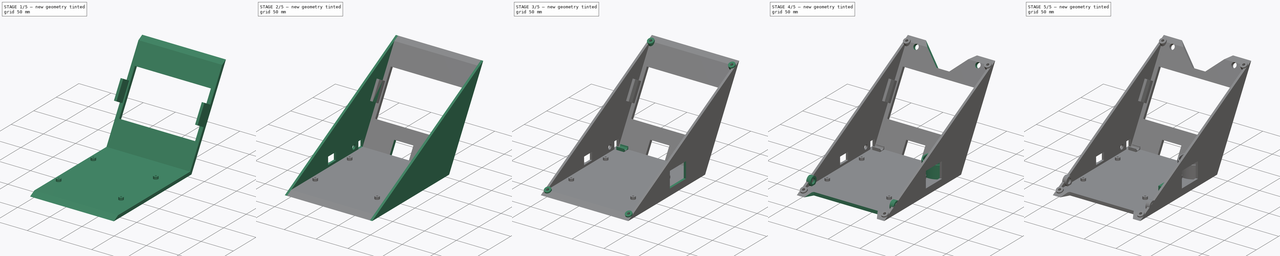
[diagram: build sequence overview — one tinted view per stage of 5, left to right]
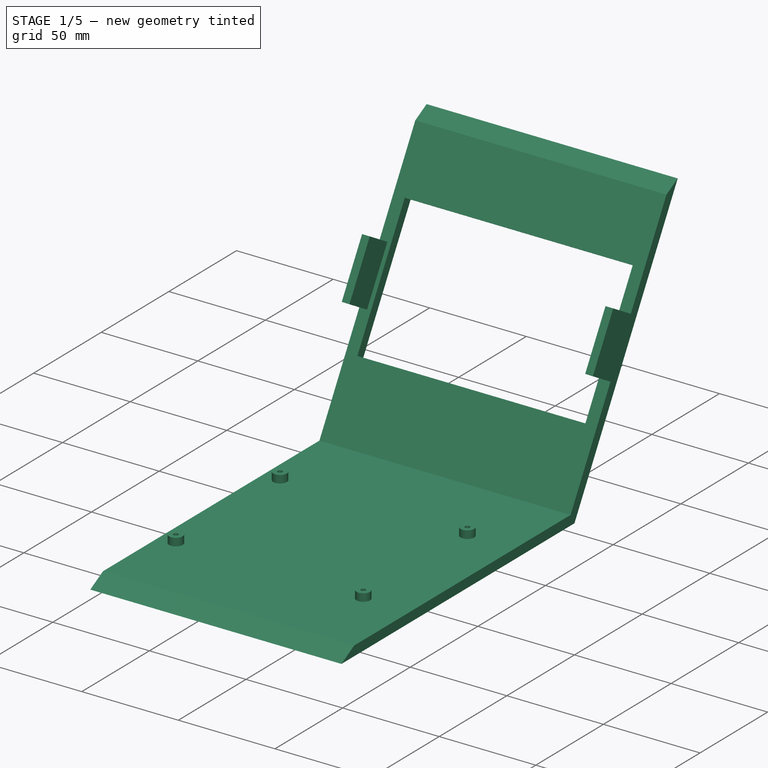
[diagram: stage 1 of 5 — iso view after this stage's code; geometry added in this stage tinted green]
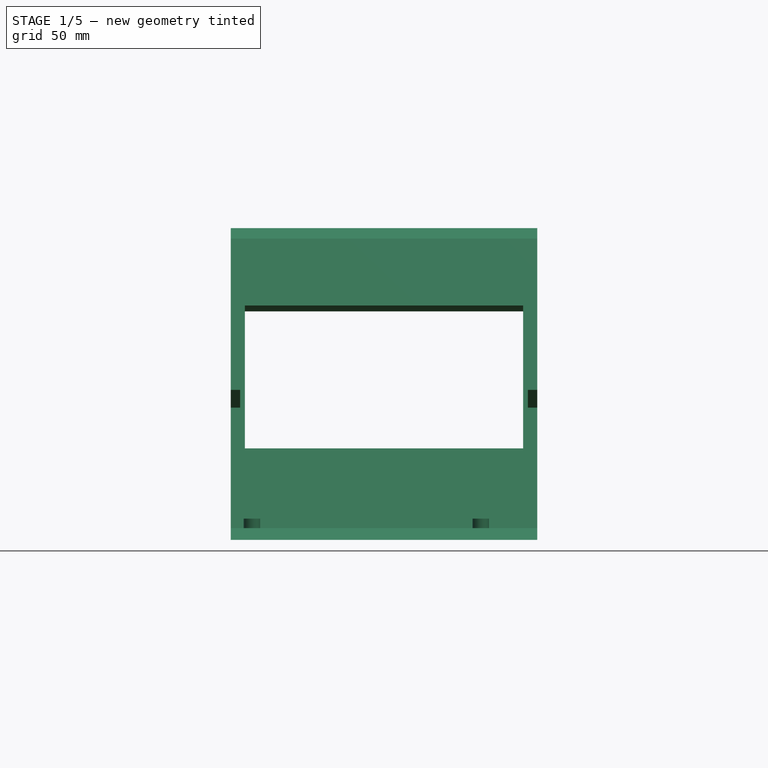
[diagram: stage 1 of 5 — front view after this stage's code; geometry added in this stage tinted green]
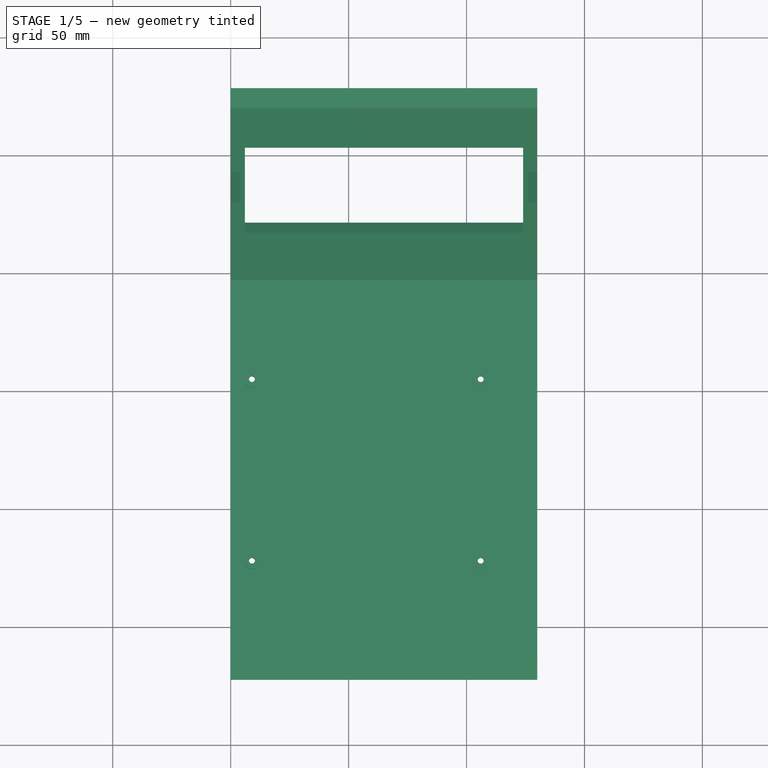
[diagram: stage 1 of 5 — top view after this stage's code; geometry added in this stage tinted green]
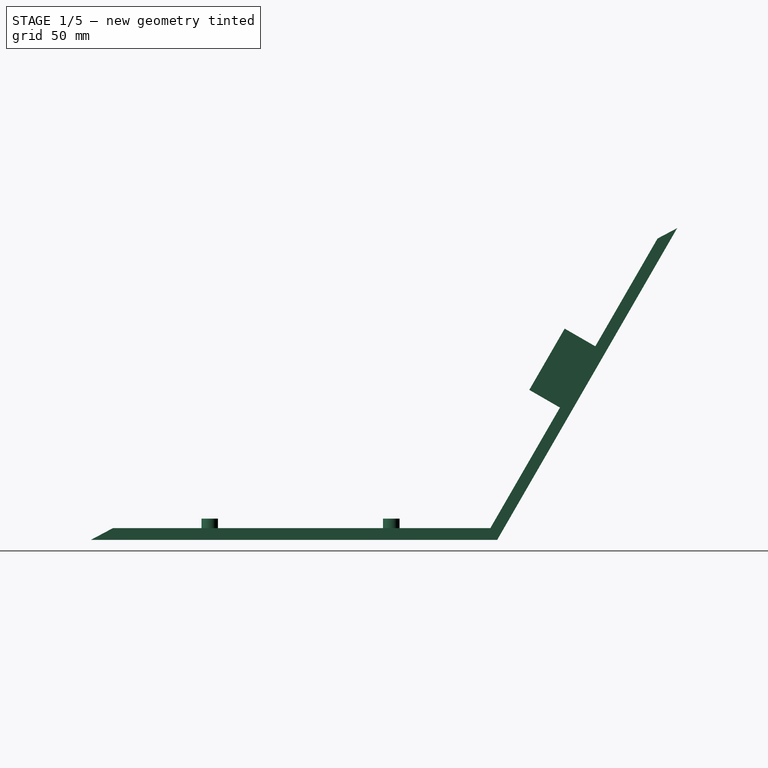
[diagram: stage 1 of 5 — right view after this stage's code; geometry added in this stage tinted green]
FCSTD DOCUMENT  (FreeCAD 0.17R9822 (Git))
Label: StereoVisionCar
License: All rights reserved
LicenseURL: http://en.wikipedia.org/wiki/All_rights_reserved
objects: Sketcher::SketchObject×26, PartDesign::Pocket×14, PartDesign::Pad×12, PartDesign::Body×1
note: 79 computed .brp shape members not serialized (recipe doc carries the construction recipe); baked Part::Feature solids carry a one-line shape summary decoded from their .brp

FEATURE [Sketcher::SketchObject] Sketch001
  MapMode = 5
  Placement = pos=(0,0,0) rot=(0.57735,0.57735,0.57735;2.0944rad)
  Support = -> [YZ_Plane]
  sketch-geometry (9):
    g0: LineSegment StartX=0 StartY=0 StartZ=0 EndX=-172.29 EndY=0 EndZ=0
    g1: LineSegment StartX=-172.29 StartY=0 StartZ=0 EndX=-162.887 EndY=5 EndZ=0
    g2: LineSegment StartX=-162.887 StartY=5 StartZ=0 EndX=-2.88675 EndY=5 EndZ=0
    g3: LineSegment StartX=-2.88675 StartY=5 StartZ=0 EndX=67.9877 EndY=127.758 EndZ=0
    g4: LineSegment StartX=67.9877 StartY=127.758 StartZ=0 EndX=76.3186 EndY=132.188 EndZ=0
    g5: LineSegment StartX=76.3186 StartY=132.188 StartZ=0 EndX=0 EndY=0 EndZ=0
    g6: LineSegment [constr] StartX=-162.887 StartY=5 StartZ=0 EndX=67.9877 EndY=127.758 EndZ=0
    g7: LineSegment [constr] StartX=67.9877 StartY=127.758 StartZ=0 EndX=72.3178 EndY=125.258 EndZ=0
    g8: LineSegment [constr] StartX=-162.887 StartY=5 StartZ=0 EndX=-162.887 EndY=0 EndZ=0
  constraints (25):
    c: Coincident(g-1,g0)
    c: Horizontal(g0)
    c: Coincident(g0,g1)
    c: Coincident(g1,g2)
    c: Horizontal(g2)
    c: Coincident(g2,g3)
    c: Coincident(g3,g4)
    c: Coincident(g4,g5)
    c: Coincident(g5,g0)
    c: Coincident(g6,g1)
    c: Coincident(g6,g3)
    c: Parallel(g1,g6)
    c: Parallel(g6,g4)
    c: Distance(g2) = 160
    c: Parallel(g5,g3)
    c: Angle(g5,g0) = 2.0944
    c: Coincident(g7,g3)
    c: PointOnObject(g7,g5)
    c: Coincident(g8,g1)
    c: PointOnObject(g8,g0)
    c: Perpendicular(g0,g8)
    c: Perpendicular(g5,g7)
    c: Equal(g8,g7)
    c: Distance(g7) = 5
    c: Angle(g6) = 0.488692
FEATURE [PartDesign::Pad] Pad
  Length = 130
  Length2 = 100
  Placement = pos=(0,0,0) rot=(0.57735,0.57735,0.57735;2.0944rad)
  Profile = -> Sketch001
  Type = 0
FEATURE [Sketcher::SketchObject] Sketch
  ExternalGeometry = -> [Pad]
  MapMode = 5
  Placement = pos=(0,-4.33013,2.5) rot=(0.447214,0.447214,-0.774597;1.82348rad)
  Support = -> [Pad]
  sketch-geometry (7):
    g0: LineSegment StartX=-111.887 StartY=124 StartZ=0 EndX=-41.8868 EndY=124 EndZ=0
    g1: LineSegment StartX=-41.8868 StartY=124 StartZ=0 EndX=-41.8868 EndY=6 EndZ=0
    g2: LineSegment StartX=-41.8868 StartY=6 StartZ=0 EndX=-111.887 EndY=6 EndZ=0
    g3: LineSegment StartX=-111.887 StartY=6 StartZ=0 EndX=-111.887 EndY=124 EndZ=0
    g4: LineSegment [constr] StartX=-41.8868 StartY=6 StartZ=0 EndX=-2.88675 EndY=6 EndZ=0
    g5: LineSegment [constr] StartX=-41.8868 StartY=6 StartZ=0 EndX=-41.8868 EndY=0 EndZ=0
    g6: LineSegment [constr] StartX=-41.8868 StartY=124 StartZ=0 EndX=-41.8868 EndY=130 EndZ=0
  constraints (21):
    c: Coincident(g0,g1)
    c: Coincident(g1,g2)
    c: Coincident(g2,g3)
    c: Coincident(g3,g0)
    c: Horizontal(g0)
    c: Horizontal(g2)
    c: Vertical(g1)
    c: Vertical(g3)
    c: Distance(g2) = 70
    c: Distance(g1) = 118
    c: Coincident(g4,g1)
    c: PointOnObject(g4,g-5)
    c: Horizontal(g4)
    c: Distance(g4) = 39
    c: Coincident(g5,g1)
    c: PointOnObject(g5,g-6)
    c: Vertical(g5)
    c: Coincident(g6,g0)
    c: PointOnObject(g6,g-3)
    c: Vertical(g6)
    c: Equal(g6,g5)
FEATURE [PartDesign::Pocket] Pocket
  BaseFeature = -> Pad
  Length = 5
  Placement = pos=(0,0,0) rot=(0.57735,0.57735,0.57735;2.0944rad)
  Profile = -> Sketch
  Type = 2
FEATURE [Sketcher::SketchObject] Sketch002
  ExternalGeometry = -> [Pocket]
  MapMode = 5
  Placement = pos=(0,0,5) rot=(0,0,-1;1.5708rad)
  Support = -> [Pocket]
  sketch-geometry (11):
    g0: LineSegment [constr] StartX=44.8868 StartY=106 StartZ=0 EndX=121.887 EndY=106 EndZ=0
    g1: LineSegment [constr] StartX=121.887 StartY=106 StartZ=0 EndX=121.887 EndY=9 EndZ=0
    g2: LineSegment [constr] StartX=121.887 StartY=9 StartZ=0 EndX=44.8868 EndY=9 EndZ=0
    g3: LineSegment [constr] StartX=44.8868 StartY=9 StartZ=0 EndX=44.8868 EndY=106 EndZ=0
    g4: LineSegment [constr] StartX=44.8868 StartY=106 StartZ=0 EndX=2.88675 EndY=106 EndZ=0
    g5: LineSegment [constr] StartX=44.8868 StartY=106 StartZ=0 EndX=44.8868 EndY=130 EndZ=0
    g6: LineSegment [constr] StartX=44.8868 StartY=9 StartZ=0 EndX=44.8868 EndY=0 EndZ=0
    g7: Circle CenterX=44.8868 CenterY=106 CenterZ=0 NormalX=0 NormalY=0 NormalZ=1 Radius=3.5
    g8: Circle CenterX=121.887 CenterY=106 CenterZ=0 NormalX=0 NormalY=0 NormalZ=1 Radius=3.5
    g9: Circle CenterX=121.887 CenterY=9 CenterZ=0 NormalX=0 NormalY=0 NormalZ=1 Radius=3.5
    g10: Circle CenterX=44.8868 CenterY=9 CenterZ=0 NormalX=0 NormalY=0 NormalZ=1 Radius=3.5
  constraints (29):
    c: Coincident(g0,g1)
    c: Coincident(g1,g2)
    c: Coincident(g2,g3)
    c: Coincident(g3,g0)
    c: Horizontal(g0)
    c: Horizontal(g2)
    c: Vertical(g1)
    c: Vertical(g3)
    c: Coincident(g4,g0)
    c: PointOnObject(g4,g-3)
    c: Horizontal(g4)
    c: Coincident(g5,g0)
    c: PointOnObject(g5,g-4)
    c: Vertical(g5)
    c: Coincident(g6,g2)
    c: PointOnObject(g6,g-5)
    c: Vertical(g6)
    c: Distance(g4) = 42
    c: Distance(g3) = 97
    c: Distance(g0) = 77
    c: Distance(g6) = 9
    c: Coincident(g7,g0)
    c: Coincident(g8,g0)
    c: Coincident(g9,g1)
    c: Coincident(g10,g2)
    c: Radius(g10) = 3.5
    c: Equal(g10,g7)
    c: Equal(g10,g8)
    c: Equal(g10,g9)
FEATURE [Sketcher::SketchObject] Sketch003
  ExternalGeometry = -> [Pocket]
  MapMode = 5
  Placement = pos=(0,-4.33013,2.5) rot=(0.447214,0.447214,-0.774597;1.82348rad)
  Support = -> [Pocket]
  sketch-geometry (6):
    g0: LineSegment StartX=-2.88675 StartY=72.5 StartZ=0 EndX=-22.8868 EndY=72.5 EndZ=0
    g1: LineSegment StartX=-22.8868 StartY=72.5 StartZ=0 EndX=-22.8868 EndY=42.5 EndZ=0
    g2: LineSegment StartX=-22.8868 StartY=42.5 StartZ=0 EndX=-2.88675 EndY=42.5 EndZ=0
    g3: LineSegment StartX=-2.88675 StartY=42.5 StartZ=0 EndX=-2.88675 EndY=72.5 EndZ=0
    g4: LineSegment [constr] StartX=-22.8868 StartY=72.5 StartZ=0 EndX=-22.8868 EndY=130 EndZ=0
    g5: LineSegment [constr] StartX=-22.8868 StartY=42.5 StartZ=0 EndX=-22.8868 EndY=0 EndZ=0
  constraints (18):
    c: Coincident(g0,g1)
    c: Coincident(g1,g2)
    c: Coincident(g2,g3)
    c: Coincident(g3,g0)
    c: Horizontal(g0)
    c: Horizontal(g2)
    c: Vertical(g1)
    c: Vertical(g3)
    c: PointOnObject(g0,g-3)
    c: Distance(g1) = 30
    c: Distance(g2) = 20
    c: Coincident(g4,g0)
    c: PointOnObject(g4,g-4)
    c: Vertical(g4)
    c: Coincident(g5,g1)
    c: PointOnObject(g5,g-5)
    c: Vertical(g5)
    c: Distance(g4) = 57.5
FEATURE [PartDesign::Pad] Pad001
  BaseFeature = -> Pocket
  Length = 4
  Length2 = 100
  Placement = pos=(0,0,0) rot=(0.57735,0.57735,0.57735;2.0944rad)
  Profile = -> Sketch002
  Type = 0
FEATURE [Sketcher::SketchObject] Sketch004
  ExternalGeometry = -> [Pad001]
  MapMode = 5
  Placement = pos=(0,0,9) rot=(0,0,-1;1.5708rad)
  Support = -> [Pad001]
  sketch-geometry (4):
    g0: Circle CenterX=44.8868 CenterY=9 CenterZ=0 NormalX=0 NormalY=0 NormalZ=1 Radius=1.25
    g1: Circle CenterX=121.887 CenterY=9 CenterZ=0 NormalX=0 NormalY=0 NormalZ=1 Radius=1.25
    g2: Circle CenterX=44.8868 CenterY=106 CenterZ=0 NormalX=0 NormalY=0 NormalZ=1 Radius=1.25
    g3: Circle CenterX=121.887 CenterY=106 CenterZ=0 NormalX=0 NormalY=0 NormalZ=1 Radius=1.25
  constraints (8):
    c: Coincident(g0,g-4)
    c: Coincident(g1,g-3)
    c: Coincident(g2,g-6)
    c: Coincident(g3,g-5)
    c: Radius(g3) = 1.25
    c: Equal(g3,g0)
    c: Equal(g3,g1)
    c: Equal(g3,g2)
FEATURE [PartDesign::Pocket] Pocket002
  BaseFeature = -> Pad001
  Length = 5
  Placement = pos=(0,0,0) rot=(0.57735,0.57735,0.57735;2.0944rad)
  Profile = -> Sketch004
  Type = 1
FEATURE [Sketcher::SketchObject] Sketch005
  MapMode = 5
  Placement = pos=(0,-4.33013,2.5) rot=(0.447214,0.447214,-0.774597;1.82348rad)
  sketch-geometry (26):
    g0: LineSegment StartX=-91.8868 StartY=130 StartZ=0 EndX=-61.8868 EndY=130 EndZ=0
    g1: LineSegment StartX=-61.8868 StartY=130 StartZ=0 EndX=-61.8868 EndY=126 EndZ=0
    g2: LineSegment StartX=-61.8868 StartY=126 StartZ=0 EndX=-91.8868 EndY=126 EndZ=0
    g3: LineSegment StartX=-91.8868 StartY=126 StartZ=0 EndX=-91.8868 EndY=130 EndZ=0
    g4: LineSegment StartX=-61.8868 StartY=0 StartZ=0 EndX=-91.8868 EndY=0 EndZ=0
    g5: LineSegment StartX=-91.8868 StartY=0 StartZ=0 EndX=-91.8868 EndY=4 EndZ=0
    g6: LineSegment StartX=-91.8868 StartY=4 StartZ=0 EndX=-61.8868 EndY=4 EndZ=0
    g7: LineSegment StartX=-61.8868 StartY=4 StartZ=0 EndX=-61.8868 EndY=0 EndZ=0
    g8: LineSegment [constr] StartX=-91.8868 StartY=4 StartZ=0 EndX=-91.8868 EndY=6 EndZ=0
    g9: LineSegment [constr] StartX=-91.8868 StartY=126 StartZ=0 EndX=-91.8868 EndY=124 EndZ=0
    g10: LineSegment [constr] StartX=-41.8868 StartY=124 StartZ=0 EndX=-61.8868 EndY=124 EndZ=0
    g11: LineSegment [constr] StartX=-61.8868 StartY=124 StartZ=0 EndX=-61.8868 EndY=126 EndZ=0
    g12: LineSegment [constr] StartX=-61.8868 StartY=126 StartZ=0 EndX=-41.8868 EndY=126 EndZ=0
    g13: LineSegment [constr] StartX=-41.8868 StartY=126 StartZ=0 EndX=-41.8868 EndY=124 EndZ=0
    g14: LineSegment [constr] StartX=-111.887 StartY=124 StartZ=0 EndX=-91.8868 EndY=124 EndZ=0
    g15: LineSegment [constr] StartX=-91.8868 StartY=124 StartZ=0 EndX=-91.8868 EndY=126 EndZ=0
    g16: LineSegment [constr] StartX=-91.8868 StartY=126 StartZ=0 EndX=-111.887 EndY=126 EndZ=0
    g17: LineSegment [constr] StartX=-111.887 StartY=126 StartZ=0 EndX=-111.887 EndY=124 EndZ=0
    g18: LineSegment [constr] StartX=-61.8868 StartY=4 StartZ=0 EndX=-41.8868 EndY=4 EndZ=0
    g19: LineSegment [constr] StartX=-41.8868 StartY=4 StartZ=0 EndX=-41.8868 EndY=6 EndZ=0
    g20: LineSegment [constr] StartX=-41.8868 StartY=6 StartZ=0 EndX=-61.8868 EndY=6 EndZ=0
    g21: LineSegment [constr] StartX=-61.8868 StartY=6 StartZ=0 EndX=-61.8868 EndY=4 EndZ=0
    g22: LineSegment [constr] StartX=-111.887 StartY=6 StartZ=0 EndX=-91.8868 EndY=6 EndZ=0
    g23: LineSegment [constr] StartX=-91.8868 StartY=6 StartZ=0 EndX=-91.8868 EndY=4 EndZ=0
    g24: LineSegment [constr] StartX=-91.8868 StartY=4 StartZ=0 EndX=-111.887 EndY=4 EndZ=0
    g25: LineSegment [constr] StartX=-111.887 StartY=4 StartZ=0 EndX=-111.887 EndY=6 EndZ=0
  constraints (62):
    c: Coincident(g0,g1)
    c: Coincident(g1,g2)
    c: Coincident(g2,g3)
    c: Coincident(g3,g0)
    c: Horizontal(g0)
    c: Horizontal(g2)
    c: Vertical(g1)
    c: Vertical(g3)
    c: Coincident(g4,g5)
    c: Coincident(g5,g6)
    c: Coincident(g6,g7)
    c: Coincident(g7,g4)
    c: Horizontal(g4)
    c: Horizontal(g6)
    c: Vertical(g5)
    c: Vertical(g7)
    c: Distance(g6) = 30
    c: Coincident(g8,g5)
    c: Vertical(g8)
    c: Coincident(g9,g2)
    c: Vertical(g9)
    c: Distance(g9) = 2
    c: Equal(g8,g9)
    c: Equal(g2,g6)
    c: Coincident(g10,g11)
    c: Coincident(g11,g12)
    c: Coincident(g12,g13)
    c: Coincident(g13,g10)
    c: Horizontal(g10)
    c: Horizontal(g12)
    c: Vertical(g11)
    c: Vertical(g13)
    c: Coincident(g11,g1)
    c: Coincident(g14,g15)
    c: Coincident(g15,g16)
    c: Coincident(g16,g17)
    c: Coincident(g17,g14)
    c: Horizontal(g14)
    c: Horizontal(g16)
    c: Vertical(g15)
    c: Vertical(g17)
    c: Coincident(g15,g2)
    c: Coincident(g18,g19)
    c: Coincident(g19,g20)
    c: Coincident(g20,g21)
    c: Coincident(g21,g18)
    c: Horizontal(g18)
    c: Horizontal(g20)
    c: Vertical(g19)
    c: Vertical(g21)
    c: Coincident(g18,g6)
    c: Coincident(g22,g23)
    c: Coincident(g23,g24)
    c: Coincident(g24,g25)
    c: Coincident(g25,g22)
    c: Horizontal(g22)
    c: Horizontal(g24)
    c: Vertical(g23)
    c: Vertical(g25)
    c: Coincident(g23,g5)
    c: Equal(g24,g18)
    c: Equal(g12,g16)
FEATURE [PartDesign::Pad] Pad002
  BaseFeature = -> Pocket002
  Length = 15
  Length2 = 100
  Placement = pos=(0,0,0) rot=(0.57735,0.57735,0.57735;2.0944rad)
  Profile = -> Sketch005
  Type = 0
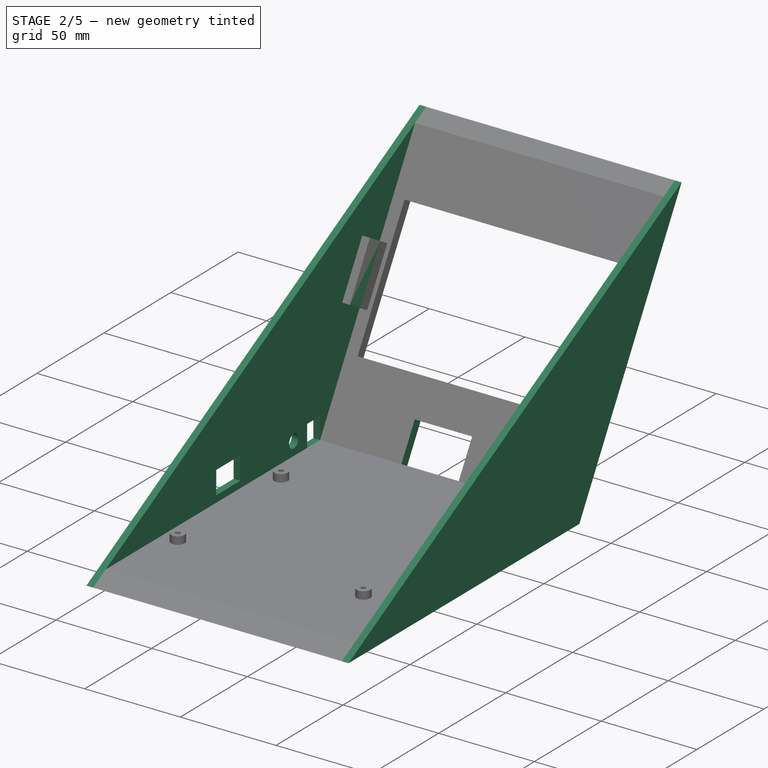
[diagram: stage 2 of 5 — iso view after this stage's code; geometry added in this stage tinted green]
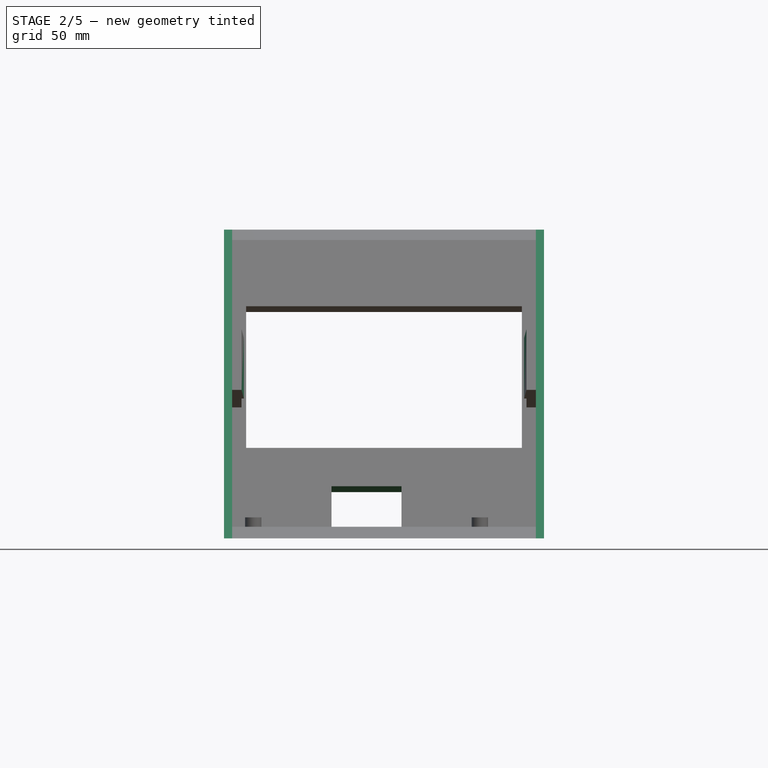
[diagram: stage 2 of 5 — front view after this stage's code; geometry added in this stage tinted green]
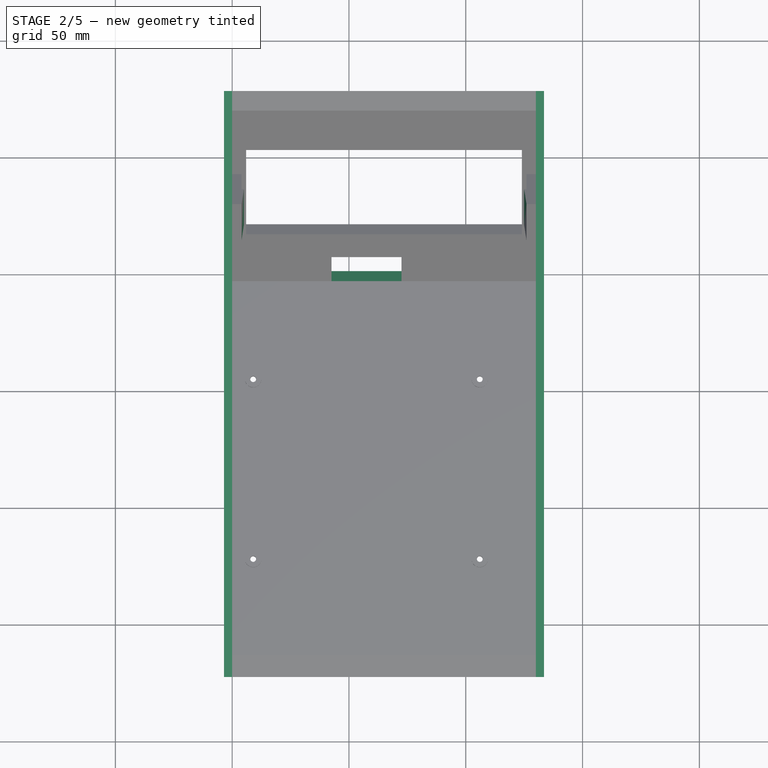
[diagram: stage 2 of 5 — top view after this stage's code; geometry added in this stage tinted green]
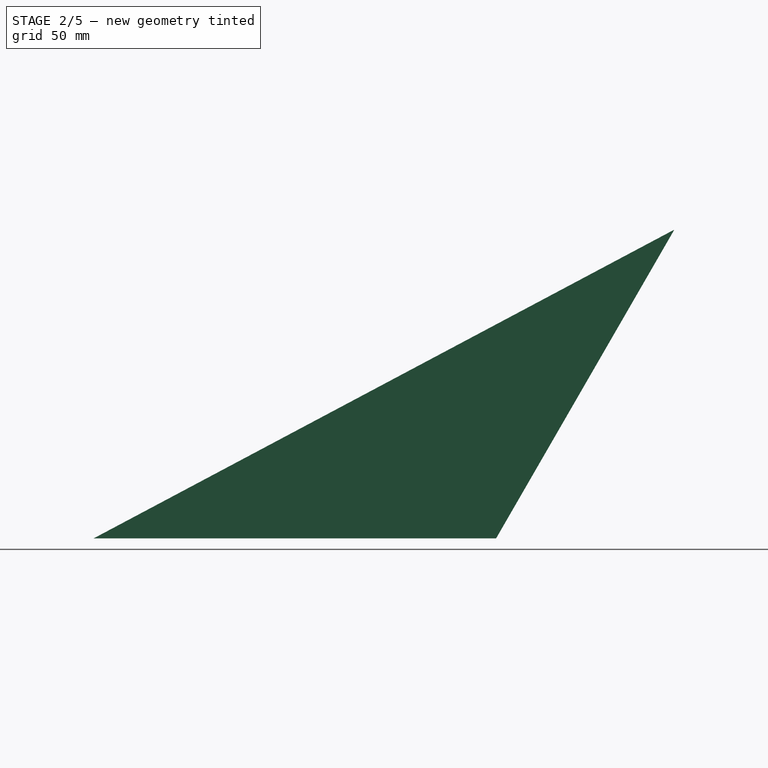
[diagram: stage 2 of 5 — right view after this stage's code; geometry added in this stage tinted green]
FEATURE [PartDesign::Pocket] Pocket003
  BaseFeature = -> Pad002
  Length = 5
  Placement = pos=(0,0,0) rot=(0.57735,0.57735,0.57735;2.0944rad)
  Profile = -> Sketch003
  Type = 0
FEATURE [Sketcher::SketchObject] Sketch006
  ExternalGeometry = -> [Pocket003]
  MapMode = 5
  Placement = pos=(0,45.9434,79.5763) rot=(-0.250563,-0.250563,-0.935113;1.63783rad)
  Support = -> [Pocket003]
  sketch-geometry (6):
    g0: LineSegment StartX=20 StartY=126 StartZ=0 EndX=12.567 EndY=126 EndZ=0
    g1: LineSegment StartX=12.567 StartY=126 StartZ=0 EndX=12.567 EndY=125 EndZ=0
    g2: LineSegment StartX=12.567 StartY=125 StartZ=0 EndX=20 EndY=126 EndZ=0
    g3: LineSegment StartX=20 StartY=4 StartZ=0 EndX=12.567 EndY=5 EndZ=0
    g4: LineSegment StartX=12.567 StartY=5 StartZ=0 EndX=12.567 EndY=4 EndZ=0
    g5: LineSegment StartX=12.567 StartY=4 StartZ=0 EndX=20 EndY=4 EndZ=0
  constraints (16):
    c: Coincident(g-4,g0)
    c: PointOnObject(g0,g-4)
    c: Coincident(g0,g1)
    c: Vertical(g1)
    c: Coincident(g1,g2)
    c: Coincident(g2,g0)
    c: Coincident(g-3,g3)
    c: Coincident(g3,g4)
    c: PointOnObject(g4,g-3)
    c: Vertical(g4)
    c: Coincident(g4,g5)
    c: Coincident(g5,g3)
    c: Equal(g1,g4)
    c: Equal(g3,g2)
    c: Distance(g1) = 1
    c: Distance(g2) = 7.5
FEATURE [PartDesign::Pad] Pad003
  BaseFeature = -> Pocket003
  Length = 30
  Length2 = 100
  Placement = pos=(0,0,0) rot=(0.57735,0.57735,0.57735;2.0944rad)
  Profile = -> Sketch006
  Reversed = true
  Type = 0
FEATURE [Sketcher::SketchObject] Sketch007
  ExternalGeometry = -> [Pad003]
  MapMode = 5
  Placement = pos=(130,0,0) rot=(0.57735,0.57735,0.57735;2.0944rad)
  Support = -> [Pad003]
  sketch-geometry (3):
    g0: LineSegment StartX=76.3186 StartY=132.188 StartZ=0 EndX=-172.29 EndY=0 EndZ=0
    g1: LineSegment StartX=-172.29 StartY=0 StartZ=0 EndX=0 EndY=0 EndZ=0
    g2: LineSegment StartX=0 StartY=0 StartZ=0 EndX=76.3186 EndY=132.188 EndZ=0
  constraints (6):
    c: Coincident(g-3,g0)
    c: Coincident(g0,g-4)
    c: Coincident(g0,g1)
    c: Coincident(g1,g-1)
    c: Coincident(g1,g2)
    c: Coincident(g2,g0)
FEATURE [PartDesign::Pad] Pad004
  BaseFeature = -> Pad003
  Length = 3.5
  Length2 = 100
  Placement = pos=(0,0,0) rot=(0.57735,0.57735,0.57735;2.0944rad)
  Profile = -> Sketch007
  Type = 0
FEATURE [Sketcher::SketchObject] Sketch008
  ExternalGeometry = -> [Pad004]
  MapMode = 5
  Placement = pos=(0,0,0) rot=(0.57735,0.57735,-0.57735;4.18879rad)
  Support = -> [Pad004]
  sketch-geometry (3):
    g0: LineSegment StartX=0 StartY=0 StartZ=0 EndX=76.3186 EndY=-132.188 EndZ=0
    g1: LineSegment StartX=76.3186 StartY=-132.188 StartZ=0 EndX=-172.29 EndY=0 EndZ=0
    g2: LineSegment StartX=-172.29 StartY=0 StartZ=0 EndX=0 EndY=0 EndZ=0
  constraints (6):
    c: Coincident(g-1,g0)
    c: Coincident(g0,g-3)
    c: Coincident(g0,g1)
    c: Coincident(g1,g-4)
    c: Coincident(g1,g2)
    c: Coincident(g2,g0)
FEATURE [PartDesign::Pad] Pad005
  BaseFeature = -> Pad004
  Length = 3.5
  Length2 = 100
  Placement = pos=(0,0,0) rot=(0.57735,0.57735,0.57735;2.0944rad)
  Profile = -> Sketch008
  Type = 0
FEATURE [Sketcher::SketchObject] Sketch009
  ExternalGeometry = -> [Pad005]
  MapMode = 5
  Placement = pos=(0,0,0) rot=(0.57735,0.57735,0.57735;2.0944rad)
  Support = -> [Pad005]
  sketch-geometry (17):
    g0: LineSegment StartX=-2.88675 StartY=5 StartZ=0 EndX=-12.4868 EndY=5 EndZ=0
    g1: LineSegment StartX=-12.4868 StartY=5 StartZ=0 EndX=-12.4868 EndY=16.3 EndZ=0
    g2: LineSegment StartX=-12.4868 StartY=16.3 StartZ=0 EndX=-2.88675 EndY=16.3 EndZ=0
    g3: LineSegment StartX=-2.88675 StartY=16.3 StartZ=0 EndX=-2.88675 EndY=5 EndZ=0
    g4: Circle CenterX=-22.4868 CenterY=12 CenterZ=0 NormalX=0 NormalY=0 NormalZ=1 Radius=3.5
    g5: LineSegment [constr] StartX=-22.4868 StartY=12 StartZ=0 EndX=-12.4868 EndY=12 EndZ=0
    g6: LineSegment [constr] StartX=-12.4868 StartY=12 StartZ=0 EndX=-12.4868 EndY=5 EndZ=0
    g7: LineSegment [constr] StartX=-12.4868 StartY=5 StartZ=0 EndX=-22.4868 EndY=5 EndZ=0
    g8: LineSegment [constr] StartX=-22.4868 StartY=5 StartZ=0 EndX=-22.4868 EndY=12 EndZ=0
    g9: LineSegment StartX=-80.3868 StartY=20.5 StartZ=0 EndX=-62.3868 EndY=20.5 EndZ=0
    g10: LineSegment StartX=-62.3868 StartY=20.5 StartZ=0 EndX=-62.3868 EndY=8.5 EndZ=0
    g11: LineSegment StartX=-62.3868 StartY=8.5 StartZ=0 EndX=-80.3868 EndY=8.5 EndZ=0
    g12: LineSegment StartX=-80.3868 StartY=8.5 StartZ=0 EndX=-80.3868 EndY=20.5 EndZ=0
    g13: LineSegment [constr] StartX=-62.3868 StartY=8.5 StartZ=0 EndX=-2.88675 EndY=8.5 EndZ=0
    g14: LineSegment [constr] StartX=-2.88675 StartY=8.5 StartZ=0 EndX=-2.88675 EndY=5 EndZ=0
    g15: LineSegment [constr] StartX=-2.88675 StartY=5 StartZ=0 EndX=-62.3868 EndY=5 EndZ=0
    g16: LineSegment [constr] StartX=-62.3868 StartY=5 StartZ=0 EndX=-62.3868 EndY=8.5 EndZ=0
  constraints (46):
    c: Coincident(g0,g1)
    c: Coincident(g1,g2)
    c: Coincident(g2,g3)
    c: Coincident(g3,g0)
    c: Horizontal(g0)
    c: Horizontal(g2)
    c: Vertical(g1)
    c: Vertical(g3)
    c: Coincident(g0,g-3)
    c: Coincident(g5,g6)
    c: Coincident(g6,g7)
    c: Coincident(g7,g8)
    c: Coincident(g8,g5)
    c: Horizontal(g5)
    c: Horizontal(g7)
    c: Vertical(g6)
    c: Vertical(g8)
    c: Coincident(g5,g4)
    c: Coincident(g6,g0)
    c: Distance(g2) = 9.6
    c: Distance(g3) = 11.3
    c: Radius(g4) = 3.5
    c: Distance(g8) = 7
    c: Distance(g5) = 10
    c: Coincident(g9,g10)
    c: Coincident(g10,g11)
    c: Coincident(g11,g12)
    c: Coincident(g12,g9)
    c: Horizontal(g9)
    c: Horizontal(g11)
    c: Vertical(g10)
    c: Vertical(g12)
    c: Coincident(g13,g14)
    c: Coincident(g14,g15)
    c: Coincident(g15,g16)
    c: Coincident(g16,g13)
    c: Horizontal(g13)
    c: Horizontal(g15)
    c: Vertical(g14)
    c: Vertical(g16)
    c: Coincident(g13,g10)
    c: Coincident(g14,g0)
    c: Distance(g13) = 59.5
    c: Distance(g9) = 18
    c: Distance(g12) = 12
    c: Distance(g16) = 3.5
FEATURE [PartDesign::Pocket] Pocket004
  BaseFeature = -> Pad005
  Length = 5
  Placement = pos=(0,0,0) rot=(0.57735,0.57735,0.57735;2.0944rad)
  Profile = -> Sketch009
  Type = 2
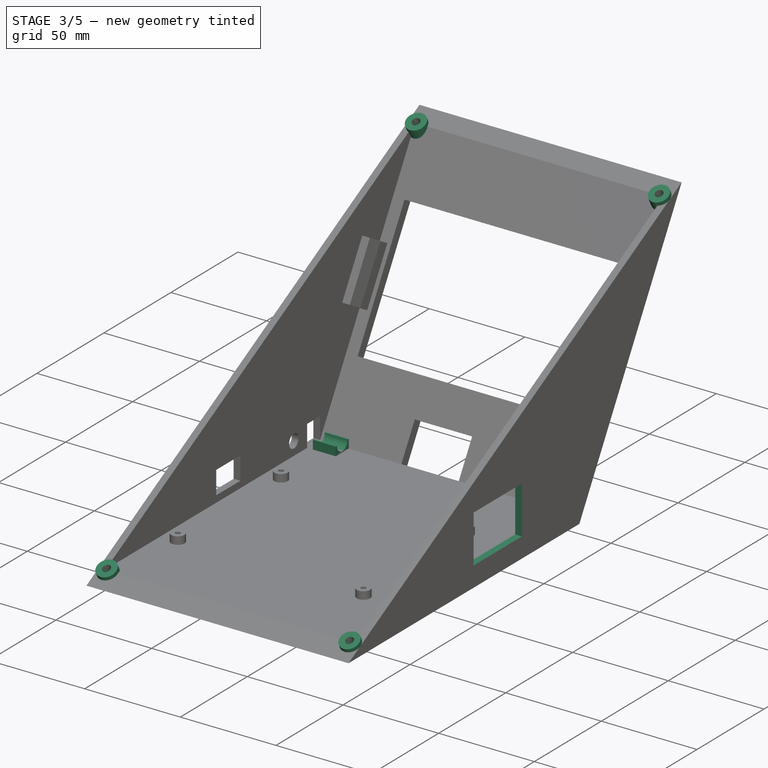
[diagram: stage 3 of 5 — iso view after this stage's code; geometry added in this stage tinted green]
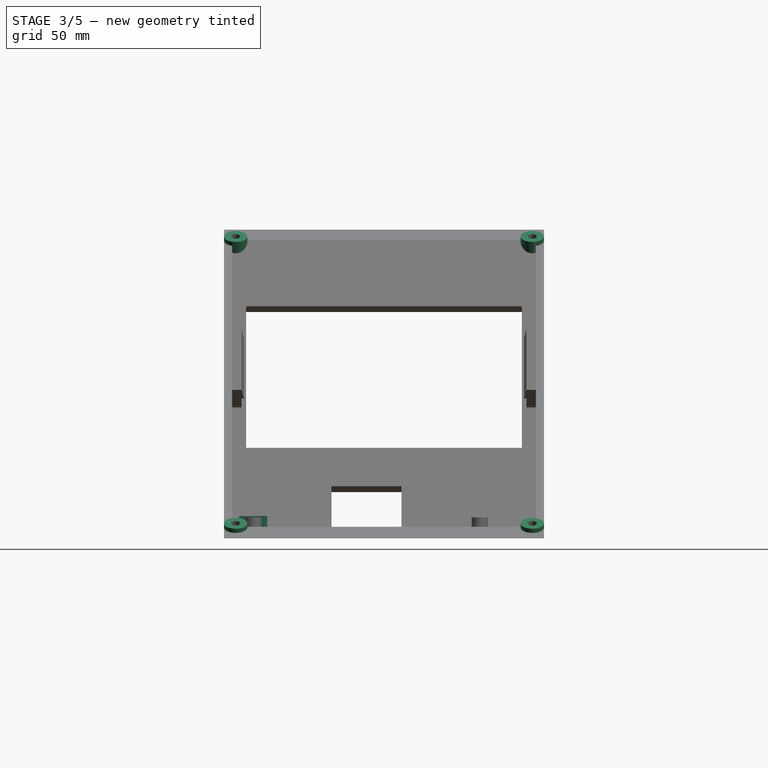
[diagram: stage 3 of 5 — front view after this stage's code; geometry added in this stage tinted green]
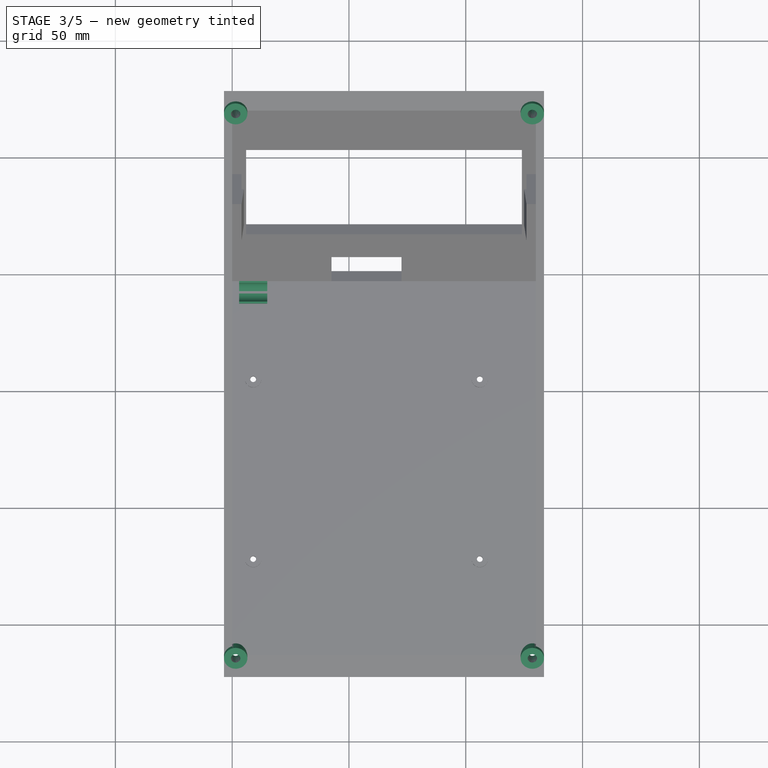
[diagram: stage 3 of 5 — top view after this stage's code; geometry added in this stage tinted green]
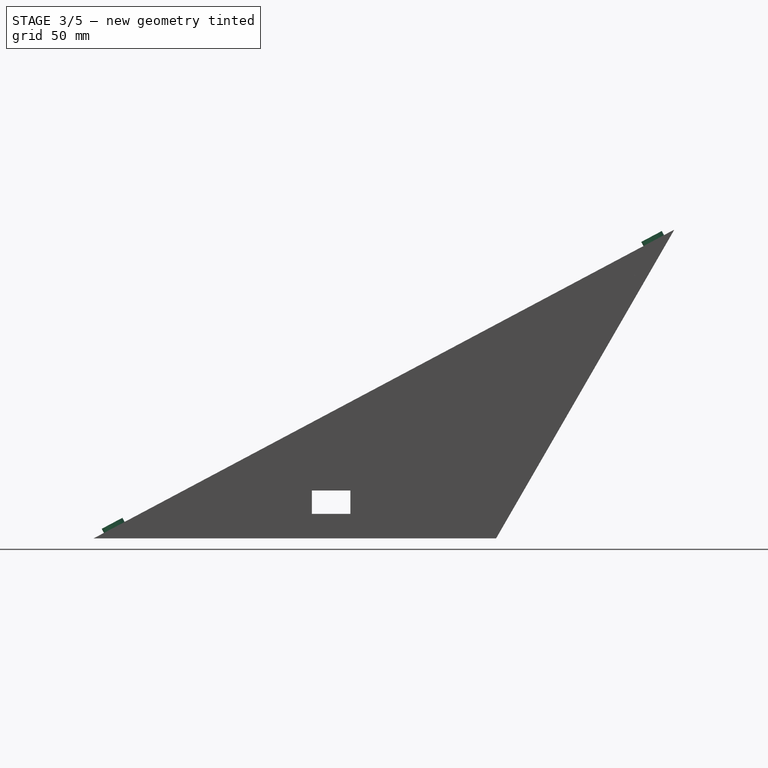
[diagram: stage 3 of 5 — right view after this stage's code; geometry added in this stage tinted green]
FEATURE [Sketcher::SketchObject] Sketch010
  ExternalGeometry = -> [Pocket004]
  MapMode = 5
  Placement = pos=(130,0,0) rot=(0.57735,0.57735,-0.57735;4.18879rad)
  Support = -> [Pocket004]
  sketch-geometry (8):
    g0: LineSegment [constr] StartX=-2.88675 StartY=-5 StartZ=0 EndX=-42.8868 EndY=-5 EndZ=0
    g1: LineSegment [constr] StartX=-42.8868 StartY=-5 StartZ=0 EndX=-42.8868 EndY=-10.5 EndZ=0
    g2: LineSegment [constr] StartX=-42.8868 StartY=-10.5 StartZ=0 EndX=-2.88675 EndY=-10.5 EndZ=0
    g3: LineSegment [constr] StartX=-2.88675 StartY=-10.5 StartZ=0 EndX=-2.88675 EndY=-5 EndZ=0
    g4: LineSegment StartX=-42.8868 StartY=-10.5 StartZ=0 EndX=-78.8868 EndY=-10.5 EndZ=0
    g5: LineSegment StartX=-78.8868 StartY=-10.5 StartZ=0 EndX=-78.8868 EndY=-35.5 EndZ=0
    g6: LineSegment StartX=-78.8868 StartY=-35.5 StartZ=0 EndX=-42.8868 EndY=-35.5 EndZ=0
    g7: LineSegment StartX=-42.8868 StartY=-35.5 StartZ=0 EndX=-42.8868 EndY=-10.5 EndZ=0
  constraints (22):
    c: Coincident(g0,g1)
    c: Coincident(g1,g2)
    c: Coincident(g2,g3)
    c: Coincident(g3,g0)
    c: Horizontal(g0)
    c: Horizontal(g2)
    c: Vertical(g1)
    c: Vertical(g3)
    c: Coincident(g0,g-3)
    c: Coincident(g4,g5)
    c: Coincident(g5,g6)
    c: Coincident(g6,g7)
    c: Coincident(g7,g4)
    c: Horizontal(g4)
    c: Horizontal(g6)
    c: Vertical(g5)
    c: Vertical(g7)
    c: Coincident(g4,g1)
    c: Distance(g2) = 40
    c: Distance(g4) = 36
    c: Distance(g5) = 25
    c: Distance(g1) = 5.5
FEATURE [PartDesign::Pocket] Pocket005
  BaseFeature = -> Pocket004
  Length = 5
  Placement = pos=(0,0,0) rot=(0.57735,0.57735,0.57735;2.0944rad)
  Profile = -> Sketch010
  Type = 2
FEATURE [Sketcher::SketchObject] Sketch011
  ExternalGeometry = -> [Pocket005]
  MapMode = 5
  Placement = pos=(0,0,5) rot=(0,0,-1;1.5708rad)
  Support = -> [Pocket005]
  sketch-geometry (5):
    g0: LineSegment StartX=2.88675 StartY=15 StartZ=0 EndX=12.4868 EndY=15 EndZ=0
    g1: LineSegment StartX=12.4868 StartY=15 StartZ=0 EndX=12.4868 EndY=3 EndZ=0
    g2: LineSegment StartX=12.4868 StartY=3 StartZ=0 EndX=2.88675 EndY=3 EndZ=0
    g3: LineSegment StartX=2.88675 StartY=3 StartZ=0 EndX=2.88675 EndY=15 EndZ=0
    g4: LineSegment [constr] StartX=12.4868 StartY=0 StartZ=0 EndX=12.4868 EndY=3 EndZ=0
  constraints (14):
    c: Coincident(g0,g1)
    c: Coincident(g1,g2)
    c: Coincident(g2,g3)
    c: Coincident(g3,g0)
    c: Horizontal(g0)
    c: Horizontal(g2)
    c: Vertical(g1)
    c: Vertical(g3)
    c: PointOnObject(g0,g-3)
    c: Distance(g1) = 12
    c: Coincident(g4,g-4)
    c: Coincident(g4,g1)
    c: Vertical(g4)
    c: Distance(g4) = 3
FEATURE [PartDesign::Pad] Pad006
  BaseFeature = -> Pocket005
  Length = 4.6
  Length2 = 100
  Placement = pos=(0,0,0) rot=(0.57735,0.57735,0.57735;2.0944rad)
  Profile = -> Sketch011
  Type = 0
FEATURE [Sketcher::SketchObject] Sketch012
  ExternalGeometry = -> [Pad006]
  MapMode = 5
  Placement = pos=(15,0,0) rot=(0.57735,0.57735,0.57735;2.0944rad)
  Support = -> [Pad006]
  sketch-geometry (4):
    g0: ArcOfCircle CenterX=-7.68675 CenterY=9.6 CenterZ=0 NormalX=0 NormalY=0 NormalZ=1 Radius=4 StartAngle=3.14159 EndAngle=6.28319
    g1: LineSegment [constr] StartX=-12.4868 StartY=9.6 StartZ=0 EndX=-11.6868 EndY=9.6 EndZ=0
    g2: LineSegment [constr] StartX=-3.68675 StartY=9.6 StartZ=0 EndX=-2.88675 EndY=9.6 EndZ=0
    g3: LineSegment StartX=-11.6868 StartY=9.6 StartZ=0 EndX=-3.68675 EndY=9.6 EndZ=0
  constraints (11):
    c: PointOnObject(g0,g-3)
    c: PointOnObject(g0,g-3)
    c: PointOnObject(g0,g-3)
    c: Coincident(g1,g-3)
    c: Coincident(g1,g0)
    c: Coincident(g2,g0)
    c: Coincident(g2,g-3)
    c: Equal(g1,g2)
    c: Radius(g0) = 4
    c: Coincident(g3,g0)
    c: Coincident(g3,g0)
FEATURE [PartDesign::Pocket] Pocket006
  BaseFeature = -> Pad006
  Length = 5
  Placement = pos=(0,0,0) rot=(0.57735,0.57735,0.57735;2.0944rad)
  Profile = -> Sketch012
  Type = 2
FEATURE [Sketcher::SketchObject] Sketch013
  ExternalGeometry = -> [Pocket006]
  MapMode = 5
  Placement = pos=(0,-37.9734,71.4176) rot=(0.235139,0.235139,-0.94309;1.62936rad)
  Support = -> [Pocket006]
  sketch-geometry (20):
    g0: Circle CenterX=-119.444 CenterY=128.5 CenterZ=0 NormalX=0 NormalY=0 NormalZ=1 Radius=5
    g1: Circle CenterX=-119.444 CenterY=1.5 CenterZ=0 NormalX=0 NormalY=0 NormalZ=1 Radius=5
    g2: Circle CenterX=142.123 CenterY=1.5 CenterZ=0 NormalX=0 NormalY=0 NormalZ=1 Radius=5
    g3: Circle CenterX=142.123 CenterY=128.5 CenterZ=0 NormalX=0 NormalY=0 NormalZ=1 Radius=5
    g4: LineSegment [constr] StartX=142.123 StartY=128.5 StartZ=0 EndX=152.123 EndY=128.5 EndZ=0
    g5: LineSegment [constr] StartX=152.123 StartY=128.5 StartZ=0 EndX=152.123 EndY=133.5 EndZ=0
    g6: LineSegment [constr] StartX=152.123 StartY=133.5 StartZ=0 EndX=142.123 EndY=133.5 EndZ=0
    g7: LineSegment [constr] StartX=142.123 StartY=133.5 StartZ=0 EndX=142.123 EndY=128.5 EndZ=0
    g8: LineSegment [constr] StartX=152.123 StartY=-3.5 StartZ=0 EndX=142.123 EndY=-3.5 EndZ=0
    g9: LineSegment [constr] StartX=142.123 StartY=-3.5 StartZ=0 EndX=142.123 EndY=1.5 EndZ=0
    g10: LineSegment [constr] StartX=142.123 StartY=1.5 StartZ=0 EndX=152.123 EndY=1.5 EndZ=0
    g11: LineSegment [constr] StartX=152.123 StartY=1.5 StartZ=0 EndX=152.123 EndY=-3.5 EndZ=0
    g12: LineSegment [constr] StartX=-129.444 StartY=-3.5 StartZ=0 EndX=-119.444 EndY=-3.5 EndZ=0
    g13: LineSegment [constr] StartX=-119.444 StartY=-3.5 StartZ=0 EndX=-119.444 EndY=1.5 EndZ=0
    g14: LineSegment [constr] StartX=-119.444 StartY=1.5 StartZ=0 EndX=-129.444 EndY=1.5 EndZ=0
    g15: LineSegment [constr] StartX=-129.444 StartY=1.5 StartZ=0 EndX=-129.444 EndY=-3.5 EndZ=0
    g16: LineSegment [constr] StartX=-129.444 StartY=133.5 StartZ=0 EndX=-119.444 EndY=133.5 EndZ=0
    g17: LineSegment [constr] StartX=-119.444 StartY=133.5 StartZ=0 EndX=-119.444 EndY=128.5 EndZ=0
    g18: LineSegment [constr] StartX=-119.444 StartY=128.5 StartZ=0 EndX=-129.444 EndY=128.5 EndZ=0
    g19: LineSegment [constr] StartX=-129.444 StartY=128.5 StartZ=0 EndX=-129.444 EndY=133.5 EndZ=0
  constraints (52):
    c: Radius(g2) = 5
    c: Equal(g2,g1)
    c: Equal(g2,g0)
    c: Equal(g2,g3)
    c: Coincident(g4,g5)
    c: Coincident(g5,g6)
    c: Coincident(g6,g7)
    c: Coincident(g7,g4)
    c: Horizontal(g4)
    c: Horizontal(g6)
    c: Vertical(g5)
    c: Vertical(g7)
    c: Coincident(g4,g3)
    c: Coincident(g5,g-5)
    c: Coincident(g8,g9)
    c: Coincident(g9,g10)
    c: Coincident(g10,g11)
    c: Coincident(g11,g8)
    c: Horizontal(g8)
    c: Horizontal(g10)
    c: Vertical(g9)
    c: Vertical(g11)
    c: Coincident(g8,g-6)
    c: Coincident(g9,g2)
    c: Coincident(g12,g13)
    c: Coincident(g13,g14)
    c: Coincident(g14,g15)
    c: Coincident(g15,g12)
    c: Horizontal(g12)
    c: Horizontal(g14)
    c: Vertical(g13)
    c: Vertical(g15)
    c: Coincident(g12,g-6)
    c: Coincident(g13,g1)
    c: Coincident(g16,g17)
    c: Coincident(g17,g18)
    c: Coincident(g18,g19)
    c: Coincident(g19,g16)
    c: Horizontal(g16)
    c: Horizontal(g18)
    c: Vertical(g17)
    c: Vertical(g19)
    c: Coincident(g16,g-5)
    c: Coincident(g17,g0)
    c: Equal(g4,g10)
    c: Equal(g10,g14)
    c: Equal(g14,g18)
    c: Distance(g18) = 10
    c: Tangent(g2,g-6)
    c: Tangent(g3,g-5)
    c: Tangent(g1,g-6)
    c: Tangent(g0,g-5)
FEATURE [PartDesign::Pad] Pad007
  BaseFeature = -> Pocket006
  Length = 2
  Length2 = 11
  Placement = pos=(0,0,0) rot=(0.57735,0.57735,0.57735;2.0944rad)
  Profile = -> Sketch013
  Type = 4
FEATURE [Sketcher::SketchObject] Sketch014
  ExternalGeometry = -> [Pad007]
  MapMode = 5
  Placement = pos=(133.5,0,0) rot=(0.57735,0.57735,0.57735;2.0944rad)
  Support = -> [Pad007]
  sketch-geometry (6):
    g0: LineSegment StartX=-172.29 StartY=0 StartZ=0 EndX=0 EndY=0 EndZ=0
    g1: LineSegment StartX=0 StartY=0 StartZ=0 EndX=76.3186 EndY=132.188 EndZ=0
    g2: LineSegment StartX=76.3186 StartY=132.188 StartZ=0 EndX=87.7096 EndY=132.188 EndZ=0
    g3: LineSegment StartX=87.7096 StartY=132.188 StartZ=0 EndX=87.7096 EndY=-17.8122 EndZ=0
    g4: LineSegment StartX=87.7096 StartY=-17.8122 StartZ=0 EndX=-172.29 EndY=-17.8122 EndZ=0
    g5: LineSegment StartX=-172.29 StartY=-17.8122 StartZ=0 EndX=-172.29 EndY=0 EndZ=0
  constraints (14):
    c: Horizontal(g0)
    c: Coincident(g0,g1)
    c: Coincident(g1,g2)
    c: Horizontal(g2)
    c: Coincident(g2,g3)
    c: Vertical(g3)
    c: Coincident(g3,g4)
    c: Horizontal(g4)
    c: Coincident(g4,g5)
    c: Vertical(g5)
    c: Coincident(g0,g-1)
    c: Coincident(g5,g0)
    c: Distance(g3) = 150
    c: Distance(g4) = 260
FEATURE [PartDesign::Pocket] Pocket007
  BaseFeature = -> Pad007
  Length = 5
  Placement = pos=(0,0,0) rot=(0.57735,0.57735,0.57735;2.0944rad)
  Profile = -> Sketch014
  Type = 1
FEATURE [Sketcher::SketchObject] Sketch017
  ExternalGeometry = -> [Pocket007]
  MapMode = 5
  Placement = pos=(0,-38.9124,73.1835) rot=(0.235139,0.235139,-0.94309;1.62936rad)
  Support = -> [Pocket007]
  sketch-geometry (4):
    g0: Circle CenterX=-119.444 CenterY=128.5 CenterZ=0 NormalX=0 NormalY=0 NormalZ=1 Radius=2
    g1: Circle CenterX=142.123 CenterY=128.5 CenterZ=0 NormalX=0 NormalY=0 NormalZ=1 Radius=2
    g2: Circle CenterX=142.123 CenterY=1.5 CenterZ=0 NormalX=0 NormalY=0 NormalZ=1 Radius=2
    g3: Circle CenterX=-119.444 CenterY=1.5 CenterZ=0 NormalX=0 NormalY=0 NormalZ=1 Radius=2
  constraints (8):
    c: Coincident(g0,g-3)
    c: Coincident(g1,g-6)
    c: Coincident(g2,g-5)
    c: Coincident(g3,g-4)
    c: Radius(g0) = 2
    c: Equal(g0,g3)
    c: Equal(g0,g2)
    c: Equal(g0,g1)
FEATURE [PartDesign::Pocket] Pocket008
  BaseFeature = -> Pocket007
  Length = 5
  Placement = pos=(0,0,0) rot=(0.57735,0.57735,0.57735;2.0944rad)
  Profile = -> Sketch017
  Type = 1
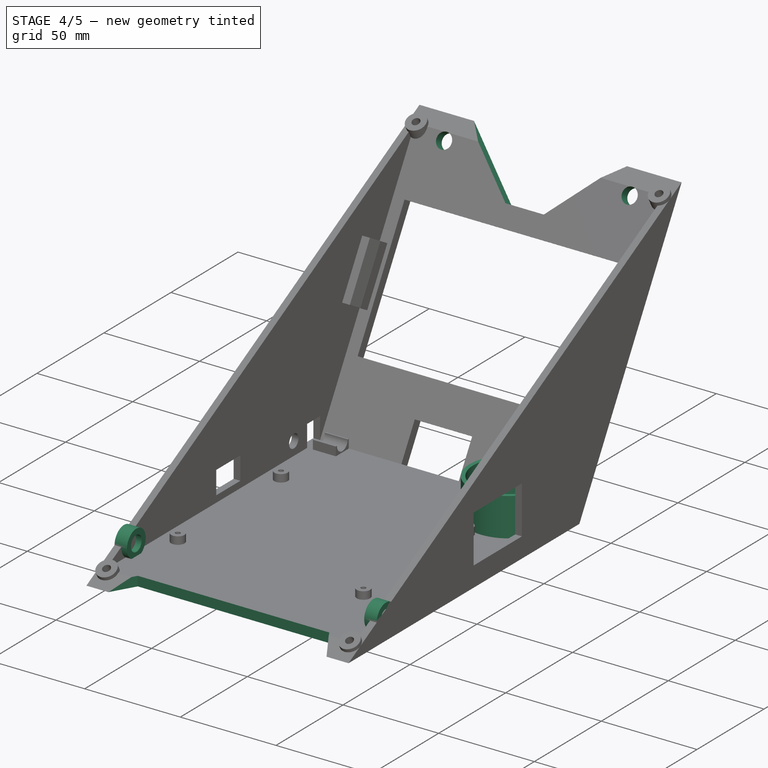
[diagram: stage 4 of 5 — iso view after this stage's code; geometry added in this stage tinted green]
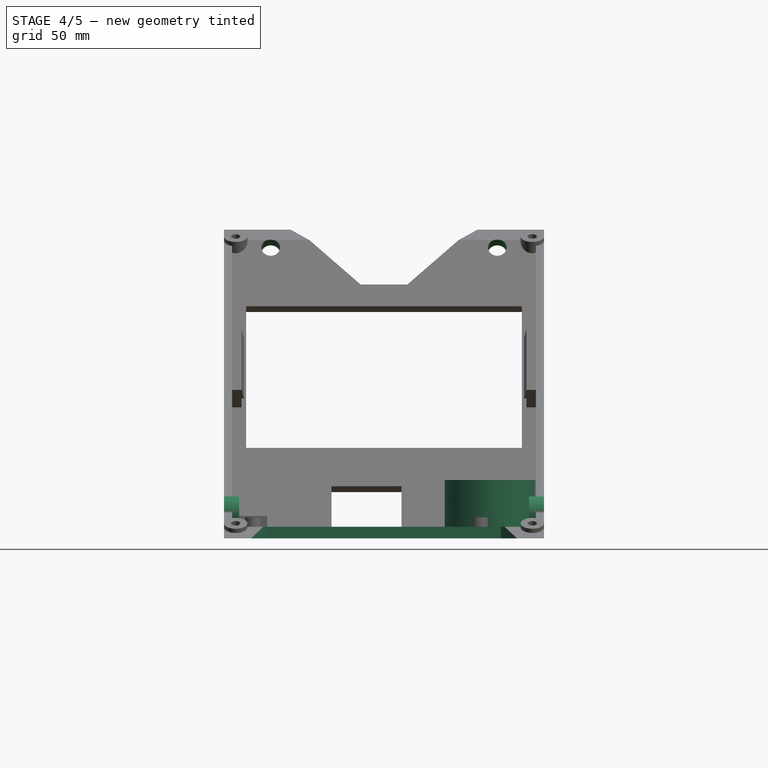
[diagram: stage 4 of 5 — front view after this stage's code; geometry added in this stage tinted green]
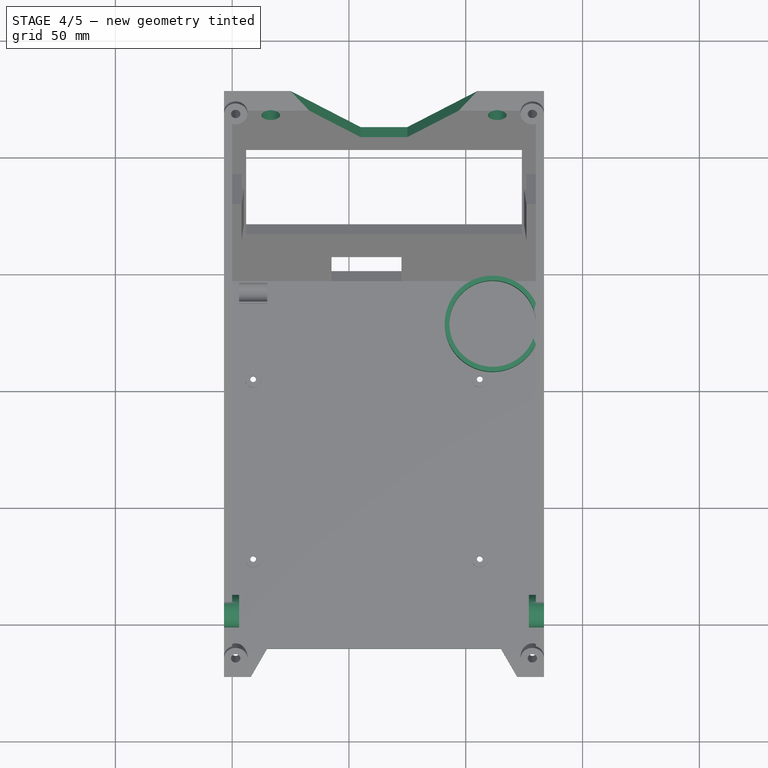
[diagram: stage 4 of 5 — top view after this stage's code; geometry added in this stage tinted green]
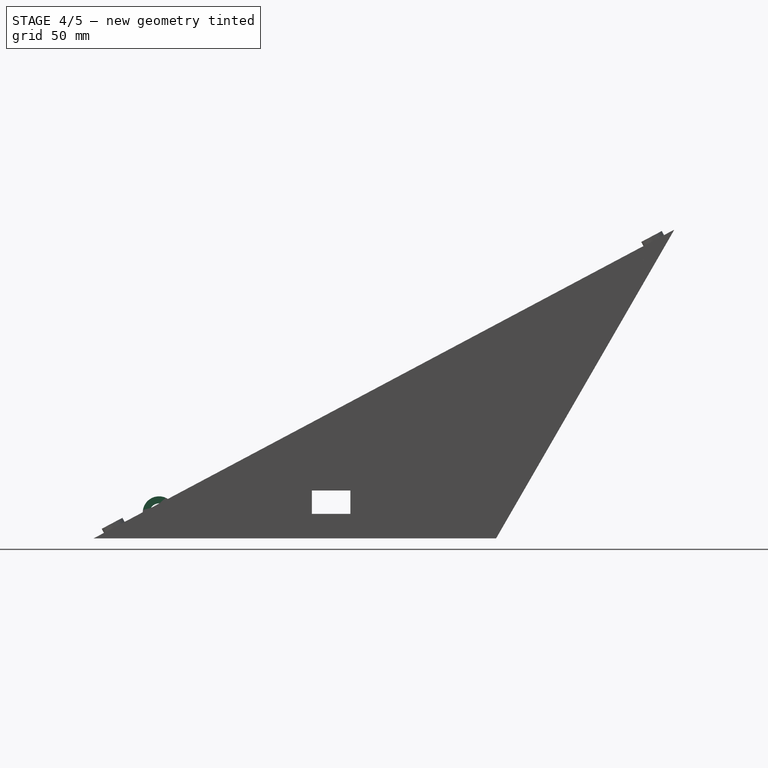
[diagram: stage 4 of 5 — right view after this stage's code; geometry added in this stage tinted green]
FEATURE [Sketcher::SketchObject] Sketch018
  ExternalGeometry = -> [Pocket008]
  MapMode = 5
  Placement = pos=(0,0,5) rot=(0,0,-1;1.5708rad)
  Support = -> [Pocket008]
  sketch-geometry (2):
    g0: Circle CenterX=21.3868 CenterY=111.5 CenterZ=0 NormalX=0 NormalY=0 NormalZ=1 Radius=20.5
    g1: Circle CenterX=21.3868 CenterY=111.5 CenterZ=0 NormalX=0 NormalY=0 NormalZ=1 Radius=18.5
  constraints (5):
    c: Coincident(g1,g0)
    c: Radius(g0) = 20.5
    c: Radius(g1) = 18.5
    c: Tangent(g1,g-3)
    c: Tangent(g1,g-5)
FEATURE [PartDesign::Pad] Pad008
  BaseFeature = -> Pocket008
  Length = 20
  Length2 = 100
  Placement = pos=(0,0,0) rot=(0.57735,0.57735,0.57735;2.0944rad)
  Profile = -> Sketch018
  Type = 0
FEATURE [Sketcher::SketchObject] Sketch019
  ExternalGeometry = -> [Pad008]
  MapMode = 5
  Placement = pos=(0,0,0) rot=(0.654654,0.654654,0.377964;3.86433rad)
  Support = -> [Pad008]
  sketch-geometry (8):
    g0: LineSegment StartX=152.637 StartY=105 StartZ=0 EndX=152.637 EndY=25 EndZ=0
    g1: LineSegment StartX=152.637 StartY=25 StartZ=0 EndX=122.637 EndY=55 EndZ=0
    g2: LineSegment StartX=122.637 StartY=55 StartZ=0 EndX=122.637 EndY=75 EndZ=0
    g3: LineSegment StartX=122.637 StartY=75 StartZ=0 EndX=152.637 EndY=105 EndZ=0
    g4: Circle CenterX=140.845 CenterY=113.5 CenterZ=0 NormalX=0 NormalY=0 NormalZ=1 Radius=4
    g5: Circle CenterX=140.845 CenterY=16.5 CenterZ=0 NormalX=0 NormalY=0 NormalZ=1 Radius=4
    g6: LineSegment [constr] StartX=140.845 StartY=128.5 StartZ=0 EndX=140.845 EndY=113.5 EndZ=0
    g7: LineSegment [constr] StartX=140.845 StartY=1.5 StartZ=0 EndX=140.845 EndY=16.5 EndZ=0
  constraints (22):
    c: PointOnObject(g0,g-3)
    c: PointOnObject(g0,g-3)
    c: Coincident(g0,g1)
    c: Coincident(g1,g2)
    c: Vertical(g2)
    c: Coincident(g2,g3)
    c: Coincident(g3,g0)
    c: Equal(g3,g1)
    c: Angle(g3) = 0.785398
    c: DistanceY(g0,g-3) = 25
    c: DistanceY(g-3,g0) = 25
    c: Distance(g2) = 20
    c: Equal(g5,g4)
    c: Radius(g5) = 4
    c: Coincident(g6,g-5)
    c: Coincident(g6,g4)
    c: Coincident(g7,g-4)
    c: Coincident(g7,g5)
    c: Vertical(g7)
    c: Vertical(g6)
    c: Equal(g6,g7)
    c: DistanceY(g7,g7) = 15
FEATURE [PartDesign::Pocket] Pocket009
  BaseFeature = -> Pad008
  Length = 5
  Placement = pos=(0,0,0) rot=(0.57735,0.57735,0.57735;2.0944rad)
  Profile = -> Sketch019
  Type = 1
FEATURE [Sketcher::SketchObject] Sketch020
  ExternalGeometry = -> [Pocket009]
  MapMode = 5
  Placement = pos=(0,0,5) rot=(0,0,-1;1.5708rad)
  Support = -> [Pocket009]
  sketch-geometry (4):
    g0: LineSegment StartX=172.29 StartY=122 StartZ=0 EndX=172.29 EndY=8 EndZ=0
    g1: LineSegment StartX=172.29 StartY=8 StartZ=0 EndX=160.29 EndY=14.9282 EndZ=0
    g2: LineSegment StartX=160.29 StartY=14.9282 StartZ=0 EndX=160.29 EndY=115.072 EndZ=0
    g3: LineSegment StartX=160.29 StartY=115.072 StartZ=0 EndX=172.29 EndY=122 EndZ=0
  constraints (12):
    c: PointOnObject(g0,g-3)
    c: PointOnObject(g0,g-3)
    c: Coincident(g0,g1)
    c: Coincident(g1,g2)
    c: Vertical(g2)
    c: Coincident(g2,g3)
    c: Coincident(g3,g0)
    c: Equal(g3,g1)
    c: Angle(g3) = 0.523599
    c: DistanceY(g-3,g0) = 8
    c: DistanceY(g0,g-3) = 8
    c: DistanceX(g2,g0) = 12
FEATURE [PartDesign::Pocket] Pocket010
  BaseFeature = -> Pocket009
  Length = 5
  Placement = pos=(0,0,0) rot=(0.57735,0.57735,0.57735;2.0944rad)
  Profile = -> Sketch020
  Type = 1
FEATURE [Sketcher::SketchObject] Sketch021
  ExternalGeometry = -> [Pocket010]
  MapMode = 5
  Placement = pos=(0,0,0) rot=(0.57735,0.57735,0.57735;2.0944rad)
  Support = -> [Pocket010]
  sketch-geometry (2):
    g0: Circle CenterX=-144.29 CenterY=11 CenterZ=0 NormalX=0 NormalY=0 NormalZ=1 Radius=4
    g1: Circle CenterX=-144.29 CenterY=11 CenterZ=0 NormalX=0 NormalY=0 NormalZ=1 Radius=7
  constraints (5):
    c: Coincident(g1,g0)
    c: Radius(g0) = 4
    c: Radius(g1) = 7
    c: DistanceX(g-5,g0) = 28
    c: DistanceY(g-4,g0) = 6
FEATURE [PartDesign::Pad] Pad009
  BaseFeature = -> Pocket010
  Length = 3
  Length2 = 3.5
  Placement = pos=(0,0,0) rot=(0.57735,0.57735,0.57735;2.0944rad)
  Profile = -> Sketch021
  Type = 4
FEATURE [Sketcher::SketchObject] Sketch022
  ExternalGeometry = -> [Pad009]
  MapMode = 5
  Placement = pos=(130,0,0) rot=(0.57735,0.57735,-0.57735;4.18879rad)
  Support = -> [Pad009]
  sketch-geometry (2):
    g0: Circle CenterX=-144.29 CenterY=-11 CenterZ=0 NormalX=0 NormalY=0 NormalZ=1 Radius=4
    g1: Circle CenterX=-144.29 CenterY=-11 CenterZ=0 NormalX=0 NormalY=0 NormalZ=1 Radius=7
  constraints (5):
    c: Coincident(g1,g0)
    c: Radius(g0) = 4
    c: Radius(g1) = 7
    c: DistanceY(g0,g-3) = 6
    c: DistanceX(g-4,g0) = 28
FEATURE [PartDesign::Pad] Pad010
  BaseFeature = -> Pad009
  Length = 3
  Length2 = 3.5
  Placement = pos=(0,0,0) rot=(0.57735,0.57735,0.57735;2.0944rad)
  Profile = -> Sketch022
  Type = 4
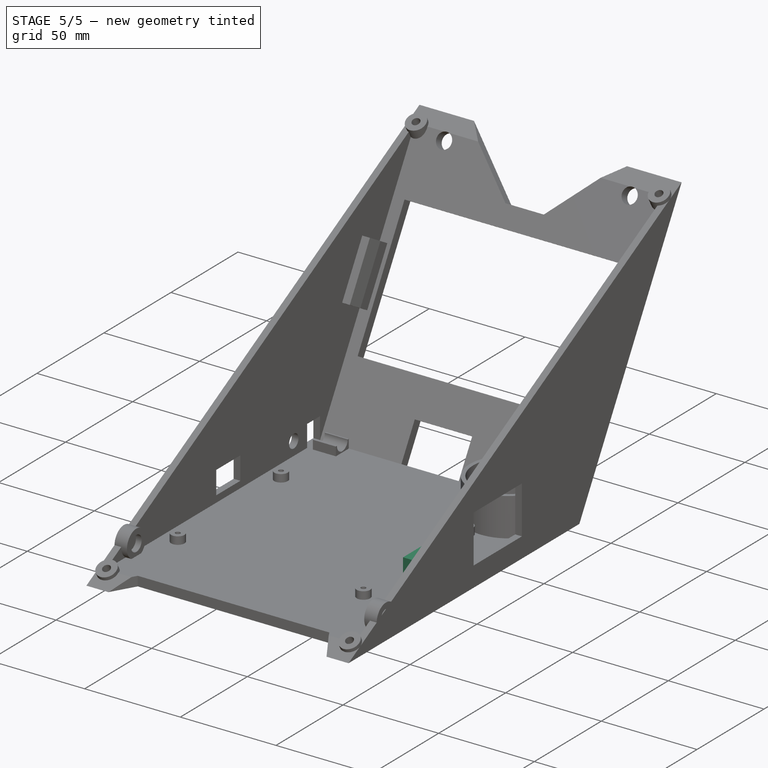
[diagram: stage 5 of 5 — iso view after this stage's code; geometry added in this stage tinted green]
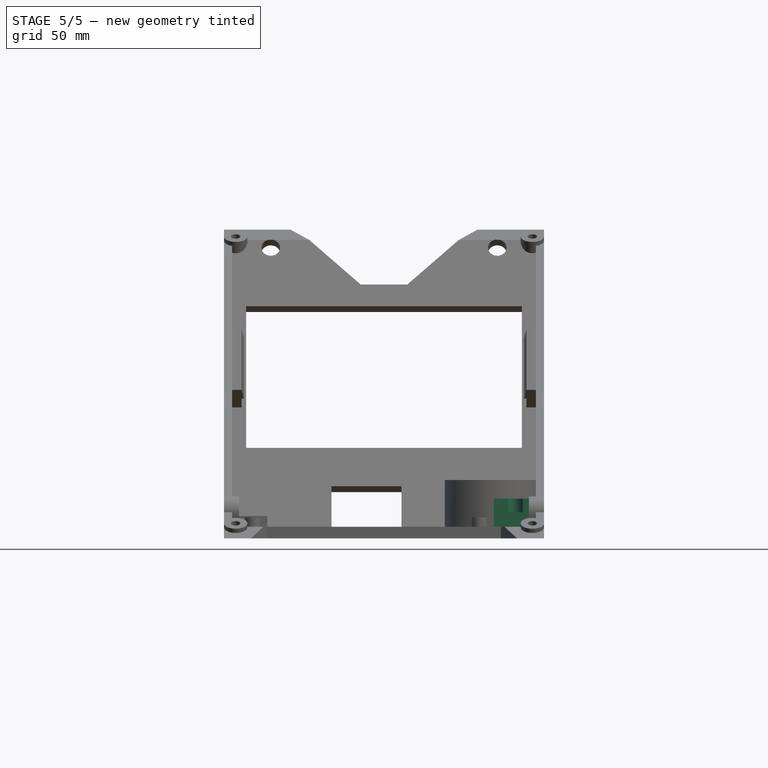
[diagram: stage 5 of 5 — front view after this stage's code; geometry added in this stage tinted green]
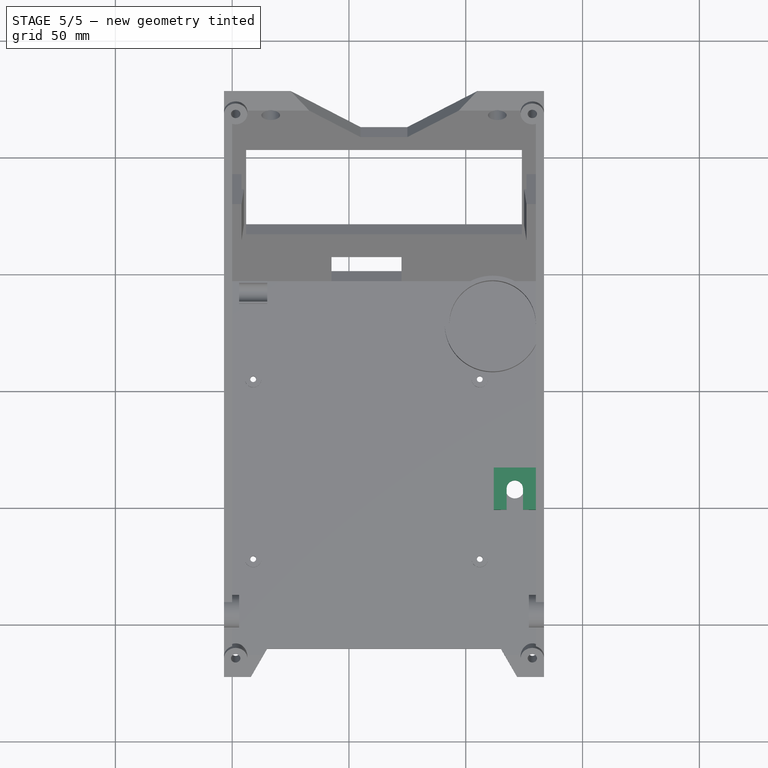
[diagram: stage 5 of 5 — top view after this stage's code; geometry added in this stage tinted green]
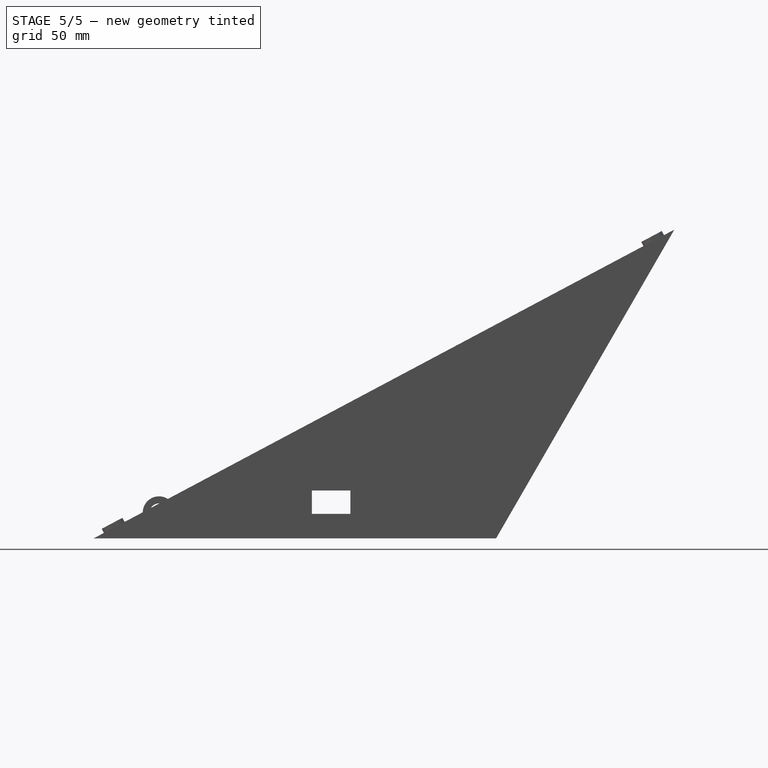
[diagram: stage 5 of 5 — right view after this stage's code; geometry added in this stage tinted green]
FEATURE [Sketcher::SketchObject] Sketch023
  ExternalGeometry = -> [Pad010]
  MapMode = 5
  Placement = pos=(0,0,5) rot=(0,0,-1;1.5708rad)
  Support = -> [Pad010]
  sketch-geometry (8):
    g0: LineSegment [constr] StartX=121.887 StartY=106 StartZ=0 EndX=100.887 EndY=106 EndZ=0
    g1: LineSegment [constr] StartX=100.887 StartY=106 StartZ=0 EndX=100.887 EndY=112 EndZ=0
    g2: LineSegment [constr] StartX=100.887 StartY=112 StartZ=0 EndX=121.887 EndY=112 EndZ=0
    g3: LineSegment [constr] StartX=121.887 StartY=112 StartZ=0 EndX=121.887 EndY=106 EndZ=0
    g4: LineSegment StartX=82.8868 StartY=130 StartZ=0 EndX=100.887 EndY=130 EndZ=0
    g5: LineSegment StartX=100.887 StartY=130 StartZ=0 EndX=100.887 EndY=112 EndZ=0
    g6: LineSegment StartX=100.887 StartY=112 StartZ=0 EndX=82.8868 EndY=112 EndZ=0
    g7: LineSegment StartX=82.8868 StartY=112 StartZ=0 EndX=82.8868 EndY=130 EndZ=0
  constraints (22):
    c: Coincident(g0,g1)
    c: Coincident(g1,g2)
    c: Coincident(g2,g3)
    c: Coincident(g3,g0)
    c: Horizontal(g0)
    c: Horizontal(g2)
    c: Vertical(g1)
    c: Vertical(g3)
    c: Coincident(g0,g-3)
    c: Distance(g0) = 21
    c: Coincident(g4,g5)
    c: Coincident(g5,g6)
    c: Coincident(g6,g7)
    c: Coincident(g7,g4)
    c: Horizontal(g4)
    c: Horizontal(g6)
    c: Vertical(g5)
    c: Vertical(g7)
    c: PointOnObject(g4,g-4)
    c: Distance(g6) = 18
    c: Distance(g5) = 18
    c: Coincident(g1,g5)
FEATURE [PartDesign::Pad] Pad011
  BaseFeature = -> Pad010
  Length = 12
  Length2 = 100
  Placement = pos=(0,0,0) rot=(0.57735,0.57735,0.57735;2.0944rad)
  Profile = -> Sketch023
  Type = 0
FEATURE [Sketcher::SketchObject] Sketch024
  ExternalGeometry = -> [Pad011]
  MapMode = 5
  Placement = pos=(0,0,17) rot=(0,0,-1;1.5708rad)
  Support = -> [Pad011]
  sketch-geometry (5):
    g0: LineSegment [constr] StartX=121.887 StartY=106 StartZ=0 EndX=91.8868 EndY=106 EndZ=0
    g1: LineSegment [constr] StartX=91.8868 StartY=106 StartZ=0 EndX=91.8868 EndY=121 EndZ=0
    g2: LineSegment [constr] StartX=91.8868 StartY=121 StartZ=0 EndX=121.887 EndY=121 EndZ=0
    g3: LineSegment [constr] StartX=121.887 StartY=121 StartZ=0 EndX=121.887 EndY=106 EndZ=0
    g4: Circle CenterX=91.8868 CenterY=121 CenterZ=0 NormalX=0 NormalY=0 NormalZ=1 Radius=3.5
  constraints (13):
    c: Coincident(g0,g1)
    c: Coincident(g1,g2)
    c: Coincident(g2,g3)
    c: Coincident(g3,g0)
    c: Horizontal(g0)
    c: Horizontal(g2)
    c: Vertical(g1)
    c: Vertical(g3)
    c: Coincident(g0,g-3)
    c: Distance(g0) = 30
    c: DistanceY(g1,g-4) = 9
    c: Coincident(g4,g1)
    c: Radius(g4) = 3.5
FEATURE [PartDesign::Pocket] Pocket011
  BaseFeature = -> Pad011
  Length = 5
  Placement = pos=(0,0,0) rot=(0.57735,0.57735,0.57735;2.0944rad)
  Profile = -> Sketch024
  Type = 1
FEATURE [Sketcher::SketchObject] Sketch025
  ExternalGeometry = -> [Pocket011]
  MapMode = 5
  Placement = pos=(0,-100.887,0) rot=(0.57735,0.57735,-0.57735;2.0944rad)
  Support = -> [Pocket011]
  sketch-geometry (4):
    g0: LineSegment StartX=-11.2 StartY=127 StartZ=0 EndX=-5 EndY=127 EndZ=0
    g1: LineSegment StartX=-5 StartY=127 StartZ=0 EndX=-5 EndY=115 EndZ=0
    g2: LineSegment StartX=-5 StartY=115 StartZ=0 EndX=-11.2 EndY=115 EndZ=0
    g3: LineSegment StartX=-11.2 StartY=115 StartZ=0 EndX=-11.2 EndY=127 EndZ=0
  constraints (12):
    c: Coincident(g0,g1)
    c: Coincident(g1,g2)
    c: Coincident(g2,g3)
    c: Coincident(g3,g0)
    c: Horizontal(g0)
    c: Horizontal(g2)
    c: Vertical(g1)
    c: Vertical(g3)
    c: PointOnObject(g1,g-3)
    c: Distance(g3) = 12
    c: DistanceY(g-6,g2) = 3
    c: Distance(g2) = 6.2
FEATURE [PartDesign::Pocket] Pocket012
  BaseFeature = -> Pocket011
  Length = 15
  Placement = pos=(0,0,0) rot=(0.57735,0.57735,0.57735;2.0944rad)
  Profile = -> Sketch025
  Type = 0
FEATURE [Sketcher::SketchObject] Sketch026
  ExternalGeometry = -> [Pocket012]
  MapMode = 5
  Placement = pos=(0,0,17) rot=(0,0,-1;1.5708rad)
  Support = -> [Pocket012]
  sketch-geometry (4):
    g0: LineSegment StartX=91.8867 StartY=117.5 StartZ=0 EndX=100.887 EndY=117.5 EndZ=0
    g1: LineSegment StartX=100.887 StartY=117.5 StartZ=0 EndX=100.887 EndY=124.5 EndZ=0
    g2: LineSegment StartX=100.887 StartY=124.5 StartZ=0 EndX=91.8867 EndY=124.5 EndZ=0
    g3: LineSegment StartX=91.8867 StartY=124.5 StartZ=0 EndX=91.8867 EndY=117.5 EndZ=0
  constraints (12):
    c: Coincident(g0,g1)
    c: Coincident(g1,g2)
    c: Coincident(g2,g3)
    c: Coincident(g3,g0)
    c: Horizontal(g0)
    c: Horizontal(g2)
    c: Vertical(g1)
    c: Vertical(g3)
    c: PointOnObject(g0,g-4)
    c: PointOnObject(g1,g-3)
    c: PointOnObject(g2,g-4)
    c: Tangent(g0,g-4)
FEATURE [PartDesign::Pocket] Pocket013
  BaseFeature = -> Pocket012
  Length = 6
  Placement = pos=(0,0,0) rot=(0.57735,0.57735,0.57735;2.0944rad)
  Profile = -> Sketch026
  Type = 0
FEATURE [Sketcher::SketchObject] Sketch027
  ExternalGeometry = -> [Pocket013]
  MapMode = 5
  Placement = pos=(0,0,5) rot=(0,0,-1;1.5708rad)
  Support = -> [Pocket013]
  sketch-geometry (1):
    g0: Circle CenterX=91.8868 CenterY=121 CenterZ=0 NormalX=0 NormalY=0 NormalZ=1 Radius=4
  constraints (2):
    c: Coincident(g0,g-3)
    c: Radius(g0) = 4
FEATURE [PartDesign::Pocket] Pocket014
  BaseFeature = -> Pocket013
  Length = 5
  Placement = pos=(0,0,0) rot=(0.57735,0.57735,0.57735;2.0944rad)
  Profile = -> Sketch027
  Type = 1
FEATURE [PartDesign::Body] Body
  Group = -> [Sketch001,Pad,Pocket,Sketch002,Sketch003,Pad001,Sketch004,Pocket002,Sketch005,Pad002,Pocket003,Sketch006,Pad003,Sketch007,Pad004,Sketch008,Pad005,Sketch009,Pocket004,Sketch010,Pocket005,Sketch011,Pad006,Sketch012,Pocket006,Sketch013,Pad007,Sketch014,Pocket007,Sketch017,Pocket008,Pad008,Sketch019,Pocket009,Sketch020,Pocket010,Sketch021,Pad009,Sketch022,Pad010,Sketch023,Pad011,Sketch024,Pocket011,+6 more]
  Origin = -> BodyOrigin
  Tip = -> Pocket014
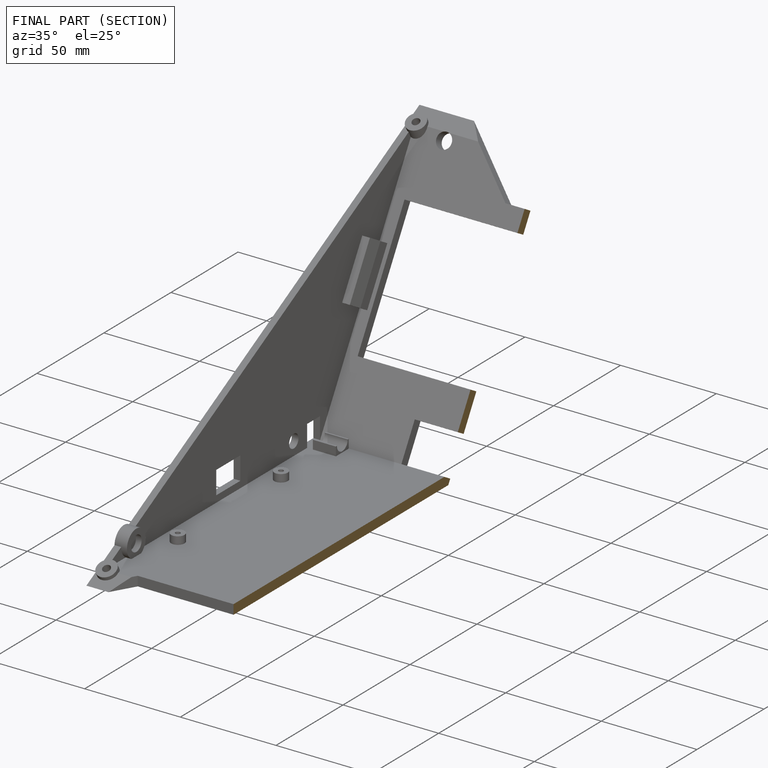
[diagram: finished part — half-section view (interior)]
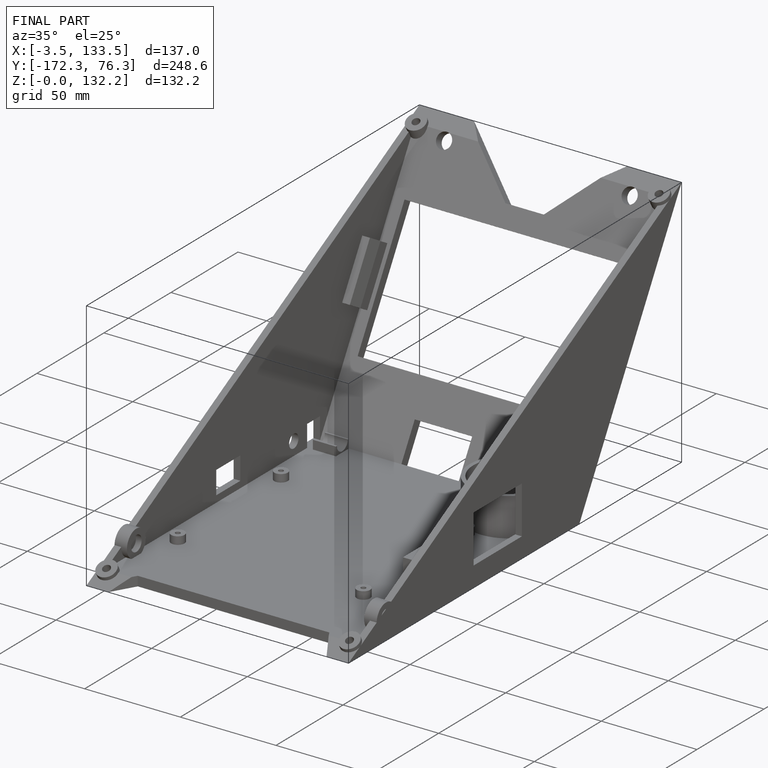
[diagram: finished part — iso view with bounding-box wireframe]
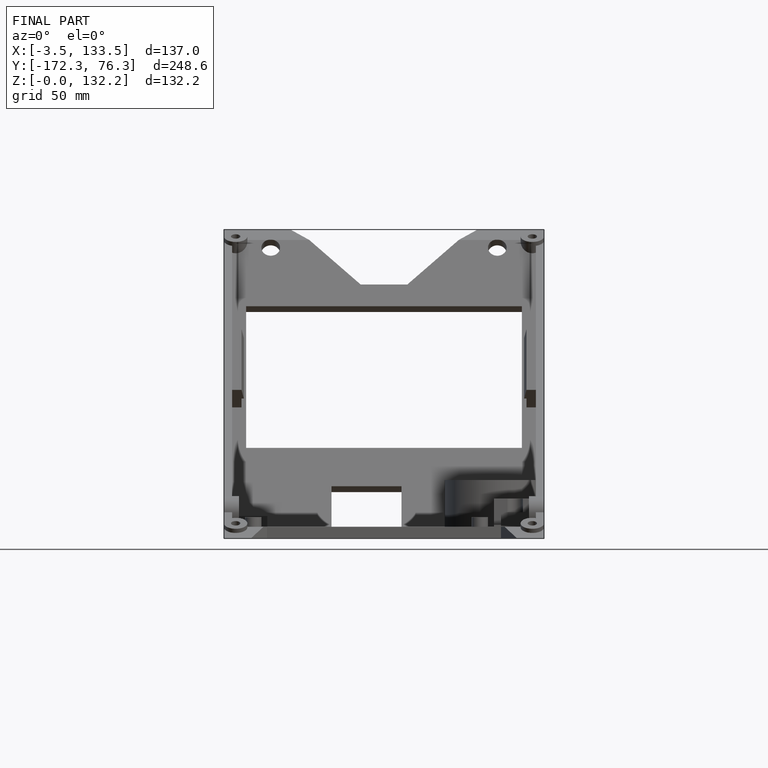
[diagram: finished part — front view with bounding-box wireframe]
